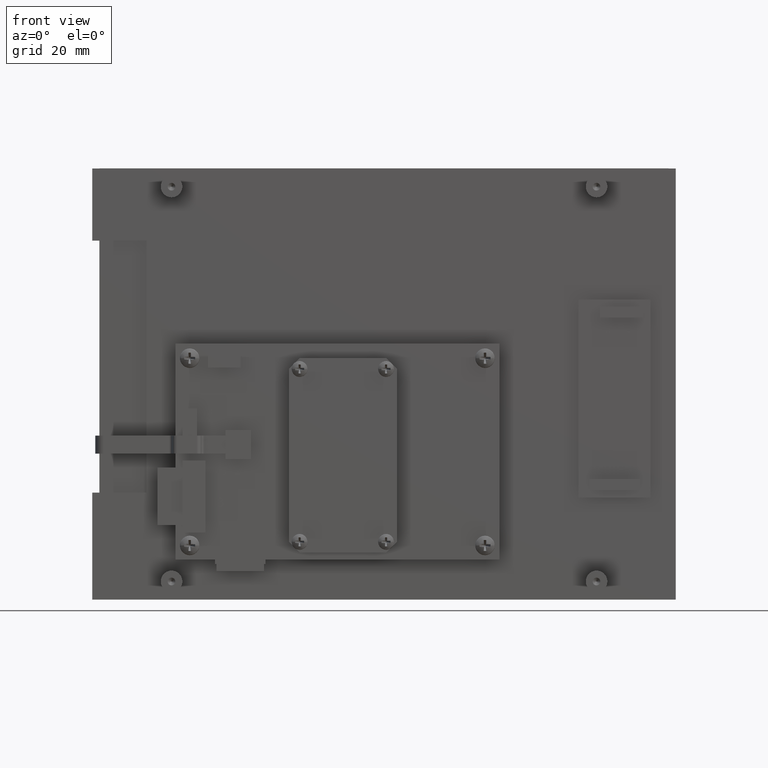
[diagram: clean part render]
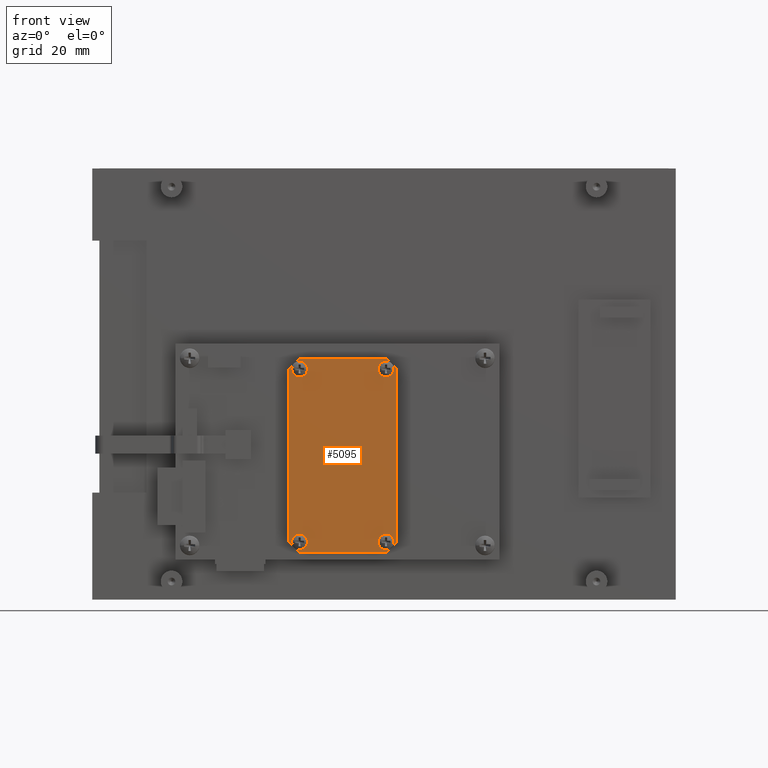
[diagram: same view with one face highlighted and labeled with its STEP entity id]
A machine part, front view. The second image highlights one B-rep face of the part: STEP entity #5095.
In plain terms, the highlighted planar face has unit normal (0, -1, 0).
Its self-contained STEP definition (entity closure, byte-faithful):
#603 = CARTESIAN_POINT ( 'NONE',  ( -0.6736452093562810300, 0.3739999999999999400, 1.250000000000000200 ) ) ;
#605 = DIRECTION ( 'NONE',  ( 0.7071067811865473500, 0.0000000000000000000, 0.7071067811865476800 ) ) ;
#609 = CARTESIAN_POINT ( 'NONE',  ( -0.5236452093562808900, 0.3739999999999999400, 1.400000000000000400 ) ) ;
#610 = DIRECTION ( 'NONE',  ( 1.000000000000000000, 0.0000000000000000000, 0.0000000000000000000 ) ) ;
#613 = CARTESIAN_POINT ( 'NONE',  ( 0.6763547906437197300, 0.3739999999999999400, 1.400000000000000400 ) ) ;
#614 = DIRECTION ( 'NONE',  ( 0.7071067811865474600, 0.0000000000000000000, -0.7071067811865474600 ) ) ;
#617 = CARTESIAN_POINT ( 'NONE',  ( 0.8263547906437195300, 0.3739999999999999400, -1.150000000000000800 ) ) ;
#618 = DIRECTION ( 'NONE',  ( -1.138269997360109700E-016, 0.0000000000000000000, -1.000000000000000000 ) ) ;
#621 = CARTESIAN_POINT ( 'NONE',  ( 0.6763547906437196200, 0.3739999999999999400, -1.300000000000000900 ) ) ;
#622 = DIRECTION ( 'NONE',  ( -0.7071067811865474600, 0.0000000000000000000, -0.7071067811865474600 ) ) ;
#625 = CARTESIAN_POINT ( 'NONE',  ( -0.5236452093562811200, 0.3739999999999999400, -1.300000000000000900 ) ) ;
#626 = DIRECTION ( 'NONE',  ( -1.000000000000000000, 0.0000000000000000000, 0.0000000000000000000 ) ) ;
#629 = CARTESIAN_POINT ( 'NONE',  ( -0.6736452093562813600, 0.3739999999999999400, -1.150000000000000800 ) ) ;
#630 = DIRECTION ( 'NONE',  ( -0.7071067811865473500, -0.0000000000000000000, 0.7071067811865476800 ) ) ;
#631 = CARTESIAN_POINT ( 'NONE',  ( -0.6736452093562813600, 0.3739999999999999400, -1.150000000000000800 ) ) ;
#632 = DIRECTION ( 'NONE',  ( 1.138269997360109700E-016, 0.0000000000000000000, 1.000000000000000000 ) ) ;
#635 = CARTESIAN_POINT ( 'NONE',  ( 0.6763547906437199500, 0.3739999999999999400, 1.250000000000000000 ) ) ;
#636 = DIRECTION ( 'NONE',  ( 0.0000000000000000000, 1.000000000000000000, -0.0000000000000000000 ) ) ;
#637 = DIRECTION ( 'NONE',  ( 0.0000000000000000000, 0.0000000000000000000, 1.000000000000000000 ) ) ;
#654 = CARTESIAN_POINT ( 'NONE',  ( -0.5236452093562811200, 0.3739999999999999400, -1.150000000000000800 ) ) ;
#655 = DIRECTION ( 'NONE',  ( 0.0000000000000000000, 1.000000000000000000, -0.0000000000000000000 ) ) ;
#656 = DIRECTION ( 'NONE',  ( 0.0000000000000000000, 0.0000000000000000000, 1.000000000000000000 ) ) ;
#672 = CARTESIAN_POINT ( 'NONE',  ( 0.6763547906437199500, 0.3739999999999999400, 1.250000000000000000 ) ) ;
#673 = DIRECTION ( 'NONE',  ( 0.0000000000000000000, 1.000000000000000000, -0.0000000000000000000 ) ) ;
#674 = DIRECTION ( 'NONE',  ( 0.0000000000000000000, 0.0000000000000000000, 1.000000000000000000 ) ) ;
#683 = CARTESIAN_POINT ( 'NONE',  ( 0.6763547906437191700, 0.3739999999999999400, -1.150000000000000800 ) ) ;
#684 = DIRECTION ( 'NONE',  ( 0.0000000000000000000, 1.000000000000000000, -0.0000000000000000000 ) ) ;
#685 = DIRECTION ( 'NONE',  ( 0.0000000000000000000, 0.0000000000000000000, 1.000000000000000000 ) ) ;
#687 = CARTESIAN_POINT ( 'NONE',  ( -0.5236452093562804500, 0.3739999999999999400, 1.250000000000000000 ) ) ;
#688 = DIRECTION ( 'NONE',  ( 0.0000000000000000000, 1.000000000000000000, -0.0000000000000000000 ) ) ;
#689 = DIRECTION ( 'NONE',  ( 0.0000000000000000000, 0.0000000000000000000, 1.000000000000000000 ) ) ;
#2588 = CIRCLE ( 'NONE', #11406, 0.05231300661539772800 ) ;
#2590 = CIRCLE ( 'NONE', #11407, 0.05231300661539772800 ) ;
#2591 = CIRCLE ( 'NONE', #11408, 0.05231300661539772800 ) ;
#3808 = CARTESIAN_POINT ( 'NONE',  ( -0.5236452093562808900, 0.3739999999999999400, 1.400000000000000400 ) ) ;
#3814 = CARTESIAN_POINT ( 'NONE',  ( -0.6736452093562810300, 0.3739999999999999400, 1.250000000000000200 ) ) ;
#3816 = CARTESIAN_POINT ( 'NONE',  ( 0.6763547906437197300, 0.3739999999999999400, 1.400000000000000400 ) ) ;
#3817 = CARTESIAN_POINT ( 'NONE',  ( 0.8263547906437197500, 0.3739999999999999400, 1.250000000000000200 ) ) ;
#3968 = CARTESIAN_POINT ( 'NONE',  ( -0.6736452093562813600, 0.3739999999999999400, -1.150000000000000800 ) ) ;
#3976 = CARTESIAN_POINT ( 'NONE',  ( -0.5236452093562811200, 0.3739999999999999400, -1.300000000000000900 ) ) ;
#3978 = CARTESIAN_POINT ( 'NONE',  ( 0.6763547906437196200, 0.3739999999999999400, -1.300000000000000900 ) ) ;
#3987 = CARTESIAN_POINT ( 'NONE',  ( 0.8263547906437195300, 0.3739999999999999400, -1.150000000000000800 ) ) ;
#4062 = CARTESIAN_POINT ( 'NONE',  ( 0.6763547906437191700, 0.3739999999999999400, -1.150000000000000800 ) ) ;
#4063 = DIRECTION ( 'NONE',  ( 0.0000000000000000000, 1.000000000000000000, -0.0000000000000000000 ) ) ;
#4064 = DIRECTION ( 'NONE',  ( 0.0000000000000000000, 0.0000000000000000000, 1.000000000000000000 ) ) ;
#4065 = CARTESIAN_POINT ( 'NONE',  ( -0.5236452093562804500, 0.3739999999999999400, 1.250000000000000000 ) ) ;
#4066 = DIRECTION ( 'NONE',  ( 0.0000000000000000000, 1.000000000000000000, -0.0000000000000000000 ) ) ;
#4067 = DIRECTION ( 'NONE',  ( 0.0000000000000000000, 0.0000000000000000000, 1.000000000000000000 ) ) ;
#4068 = CARTESIAN_POINT ( 'NONE',  ( -0.5236452093562811200, 0.3739999999999999400, -1.150000000000000800 ) ) ;
#4069 = DIRECTION ( 'NONE',  ( 0.0000000000000000000, 1.000000000000000000, -0.0000000000000000000 ) ) ;
#4070 = DIRECTION ( 'NONE',  ( 0.0000000000000000000, 0.0000000000000000000, 1.000000000000000000 ) ) ;
#5095 = ADVANCED_FACE ( 'NONE', ( #9036, #9039, #9037, #9038, #9029 ), #10406, .T. ) ;
#5417 = VERTEX_POINT ( 'NONE', #20284 ) ;
#5418 = VERTEX_POINT ( 'NONE', #20274 ) ;
#5460 = VERTEX_POINT ( 'NONE', #20291 ) ;
#5464 = VERTEX_POINT ( 'NONE', #20295 ) ;
#5525 = VERTEX_POINT ( 'NONE', #20307 ) ;
#5611 = VERTEX_POINT ( 'NONE', #20320 ) ;
#5695 = VERTEX_POINT ( 'NONE', #20326 ) ;
#5721 = VERTEX_POINT ( 'NONE', #20330 ) ;
#6063 = EDGE_CURVE ( 'NONE', #13052, #13046, #9776, .T. ) ;
#6066 = EDGE_CURVE ( 'NONE', #13046, #13054, #9782, .T. ) ;
#6068 = EDGE_CURVE ( 'NONE', #13054, #13055, #9786, .T. ) ;
#6070 = EDGE_CURVE ( 'NONE', #13055, #13225, #9790, .T. ) ;
#6072 = EDGE_CURVE ( 'NONE', #13225, #13216, #9794, .T. ) ;
#6074 = EDGE_CURVE ( 'NONE', #13216, #13214, #9798, .T. ) ;
#6076 = EDGE_CURVE ( 'NONE', #13214, #13206, #9802, .T. ) ;
#6077 = EDGE_CURVE ( 'NONE', #13206, #13052, #9804, .T. ) ;
#6078 = EDGE_CURVE ( 'NONE', #5460, #5525, #9806, .T. ) ;
#6085 = EDGE_CURVE ( 'NONE', #5417, #5464, #9817, .T. ) ;
#6094 = EDGE_CURVE ( 'NONE', #5525, #5460, #9831, .T. ) ;
#6098 = EDGE_CURVE ( 'NONE', #5418, #5611, #9837, .T. ) ;
#6100 = EDGE_CURVE ( 'NONE', #5695, #5721, #9840, .T. ) ;
#8375 = AXIS2_PLACEMENT_3D ( 'NONE', #10403, #10399, #10409 ) ;
#9029 = FACE_OUTER_BOUND ( 'NONE', #13314, .T. ) ;
#9036 = FACE_BOUND ( 'NONE', #13372, .T. ) ;
#9037 = FACE_BOUND ( 'NONE', #13530, .T. ) ;
#9038 = FACE_BOUND ( 'NONE', #13320, .T. ) ;
#9039 = FACE_BOUND ( 'NONE', #13308, .T. ) ;
#9776 = LINE ( 'NONE', #603, #9779 ) ;
#9779 = VECTOR ( 'NONE', #605, 39.37007874015748900 ) ;
#9782 = LINE ( 'NONE', #609, #9785 ) ;
#9785 = VECTOR ( 'NONE', #610, 39.37007874015748100 ) ;
#9786 = LINE ( 'NONE', #613, #9789 ) ;
#9789 = VECTOR ( 'NONE', #614, 39.37007874015748900 ) ;
#9790 = LINE ( 'NONE', #617, #9793 ) ;
#9793 = VECTOR ( 'NONE', #618, 39.37007874015748100 ) ;
#9794 = LINE ( 'NONE', #621, #9797 ) ;
#9797 = VECTOR ( 'NONE', #622, 39.37007874015748900 ) ;
#9798 = LINE ( 'NONE', #625, #9801 ) ;
#9801 = VECTOR ( 'NONE', #626, 39.37007874015748100 ) ;
#9802 = LINE ( 'NONE', #629, #9805 ) ;
#9804 = LINE ( 'NONE', #631, #9807 ) ;
#9805 = VECTOR ( 'NONE', #630, 39.37007874015748900 ) ;
#9806 = CIRCLE ( 'NONE', #11361, 0.05231300661539772800 ) ;
#9807 = VECTOR ( 'NONE', #632, 39.37007874015748100 ) ;
#9817 = CIRCLE ( 'NONE', #11365, 0.05231300661539772800 ) ;
#9831 = CIRCLE ( 'NONE', #11367, 0.05231300661539772800 ) ;
#9837 = CIRCLE ( 'NONE', #11369, 0.05231300661539772800 ) ;
#9840 = CIRCLE ( 'NONE', #11370, 0.05231300661539772800 ) ;
#10399 = DIRECTION ( 'NONE',  ( 0.0000000000000000000, 1.000000000000000000, 0.0000000000000000000 ) ) ;
#10403 = CARTESIAN_POINT ( 'NONE',  ( 0.0000000000000000000, 0.3739999999999999400, 0.0000000000000000000 ) ) ;
#10406 = PLANE ( 'NONE',  #8375 ) ;
#10409 = DIRECTION ( 'NONE',  ( 0.0000000000000000000, -0.0000000000000000000, 1.000000000000000000 ) ) ;
#11361 = AXIS2_PLACEMENT_3D ( 'NONE', #635, #636, #637 ) ;
#11365 = AXIS2_PLACEMENT_3D ( 'NONE', #654, #655, #656 ) ;
#11367 = AXIS2_PLACEMENT_3D ( 'NONE', #672, #673, #674 ) ;
#11369 = AXIS2_PLACEMENT_3D ( 'NONE', #683, #684, #685 ) ;
#11370 = AXIS2_PLACEMENT_3D ( 'NONE', #687, #688, #689 ) ;
#11406 = AXIS2_PLACEMENT_3D ( 'NONE', #4062, #4063, #4064 ) ;
#11407 = AXIS2_PLACEMENT_3D ( 'NONE', #4065, #4066, #4067 ) ;
#11408 = AXIS2_PLACEMENT_3D ( 'NONE', #4068, #4069, #4070 ) ;
#13046 = VERTEX_POINT ( 'NONE', #3808 ) ;
#13052 = VERTEX_POINT ( 'NONE', #3814 ) ;
#13054 = VERTEX_POINT ( 'NONE', #3816 ) ;
#13055 = VERTEX_POINT ( 'NONE', #3817 ) ;
#13206 = VERTEX_POINT ( 'NONE', #3968 ) ;
#13214 = VERTEX_POINT ( 'NONE', #3976 ) ;
#13216 = VERTEX_POINT ( 'NONE', #3978 ) ;
#13225 = VERTEX_POINT ( 'NONE', #3987 ) ;
#13308 = EDGE_LOOP ( 'NONE', ( #16030, #15477 ) ) ;
#13314 = EDGE_LOOP ( 'NONE', ( #15488, #16142, #15482, #15991, #15692, #16084, #16010, #15742 ) ) ;
#13320 = EDGE_LOOP ( 'NONE', ( #15468, #16052 ) ) ;
#13372 = EDGE_LOOP ( 'NONE', ( #15714, #15727 ) ) ;
#13530 = EDGE_LOOP ( 'NONE', ( #15731, #15913 ) ) ;
#13681 = EDGE_CURVE ( 'NONE', #5611, #5418, #2588, .T. ) ;
#13682 = EDGE_CURVE ( 'NONE', #5721, #5695, #2590, .T. ) ;
#13683 = EDGE_CURVE ( 'NONE', #5464, #5417, #2591, .T. ) ;
#15468 = ORIENTED_EDGE ( 'NONE', *, *, #13683, .F. ) ;
#15477 = ORIENTED_EDGE ( 'NONE', *, *, #6098, .F. ) ;
#15482 = ORIENTED_EDGE ( 'NONE', *, *, #6068, .T. ) ;
#15488 = ORIENTED_EDGE ( 'NONE', *, *, #6063, .T. ) ;
#15692 = ORIENTED_EDGE ( 'NONE', *, *, #6072, .T. ) ;
#15714 = ORIENTED_EDGE ( 'NONE', *, *, #6078, .F. ) ;
#15727 = ORIENTED_EDGE ( 'NONE', *, *, #6094, .F. ) ;
#15731 = ORIENTED_EDGE ( 'NONE', *, *, #13682, .F. ) ;
#15742 = ORIENTED_EDGE ( 'NONE', *, *, #6077, .T. ) ;
#15913 = ORIENTED_EDGE ( 'NONE', *, *, #6100, .F. ) ;
#15991 = ORIENTED_EDGE ( 'NONE', *, *, #6070, .T. ) ;
#16010 = ORIENTED_EDGE ( 'NONE', *, *, #6076, .T. ) ;
#16030 = ORIENTED_EDGE ( 'NONE', *, *, #13681, .F. ) ;
#16052 = ORIENTED_EDGE ( 'NONE', *, *, #6085, .F. ) ;
#16084 = ORIENTED_EDGE ( 'NONE', *, *, #6074, .T. ) ;
#16142 = ORIENTED_EDGE ( 'NONE', *, *, #6066, .T. ) ;
#20274 = CARTESIAN_POINT ( 'NONE',  ( 0.6763547906437191700, 0.3739999999999999400, -1.202313006615398600 ) ) ;
#20284 = CARTESIAN_POINT ( 'NONE',  ( -0.5236452093562811200, 0.3739999999999999400, -1.202313006615398600 ) ) ;
#20291 = CARTESIAN_POINT ( 'NONE',  ( 0.6763547906437199500, 0.3739999999999999400, 1.302313006615397800 ) ) ;
#20295 = CARTESIAN_POINT ( 'NONE',  ( -0.5236452093562811200, 0.3739999999999999400, -1.097686993384603200 ) ) ;
#20307 = CARTESIAN_POINT ( 'NONE',  ( 0.6763547906437199500, 0.3739999999999999400, 1.197686993384602400 ) ) ;
#20320 = CARTESIAN_POINT ( 'NONE',  ( 0.6763547906437191700, 0.3739999999999999400, -1.097686993384603200 ) ) ;
#20326 = CARTESIAN_POINT ( 'NONE',  ( -0.5236452093562804500, 0.3739999999999999400, 1.197686993384602400 ) ) ;
#20330 = CARTESIAN_POINT ( 'NONE',  ( -0.5236452093562804500, 0.3739999999999999400, 1.302313006615397800 ) ) ;